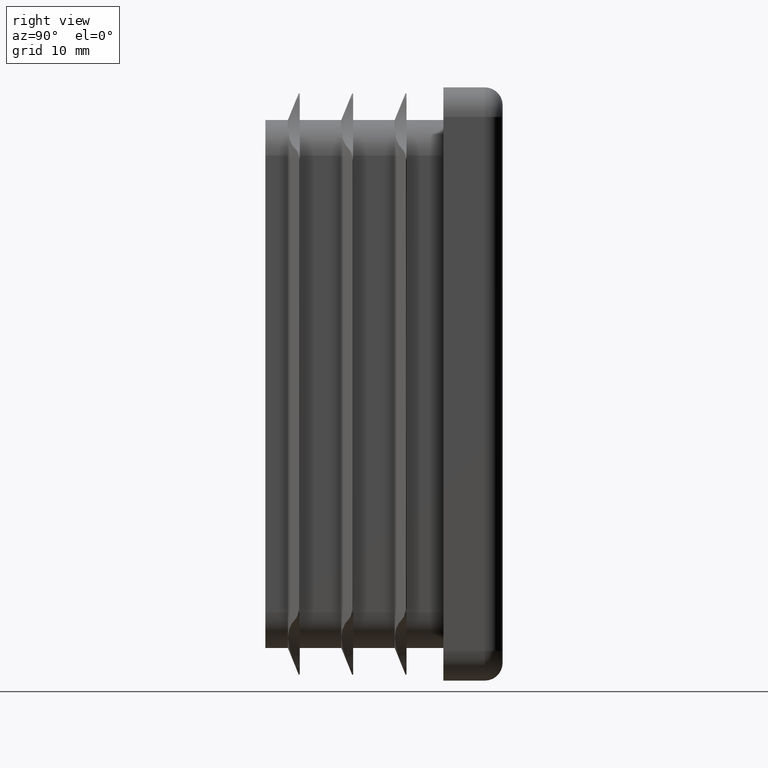
[diagram: clean part render]
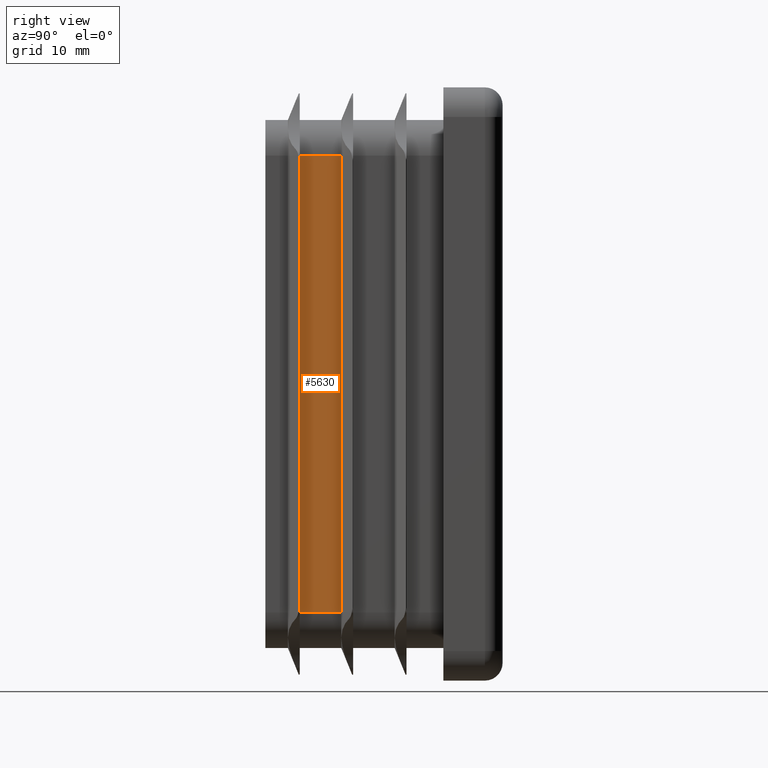
[diagram: same view with one face highlighted and labeled with its STEP entity id]
A machine part, right view. The second image highlights one B-rep face of the part: STEP entity #5630.
In plain terms, the highlighted planar face has unit normal (-1, 0, -0).
Its self-contained STEP definition (entity closure, byte-faithful):
#491 = DIRECTION ( 'NONE',  ( 4.505775262277420615E-16, 0.000000000000000000, -1.000000000000000000 ) ) ;
#661 = EDGE_CURVE ( 'NONE', #10861, #19691, #15038, .T. ) ;
#986 = PLANE ( 'NONE',  #10226 ) ;
#1874 = VECTOR ( 'NONE', #491, 1000.000000000000000 ) ;
#2814 = VECTOR ( 'NONE', #18132, 1000.000000000000000 ) ;
#3225 = FACE_OUTER_BOUND ( 'NONE', #8747, .T. ) ;
#3935 = ORIENTED_EDGE ( 'NONE', *, *, #8529, .F. ) ;
#4799 = CARTESIAN_POINT ( 'NONE',  ( 12.25000000000000355, -12.10000000000000142, 0.000000000000000000 ) ) ;
#4883 = DIRECTION ( 'NONE',  ( 4.505775262277420615E-16, 0.000000000000000000, -1.000000000000000000 ) ) ;
#5165 = CARTESIAN_POINT ( 'NONE',  ( 12.25000000000003375, -8.599999999999999645, 19.25000000000000355 ) ) ;
#5237 = EDGE_CURVE ( 'NONE', #10005, #8862, #18724, .T. ) ;
#5454 = ORIENTED_EDGE ( 'NONE', *, *, #19702, .T. ) ;
#5630 = ADVANCED_FACE ( 'NONE', ( #3225 ), #986, .F. ) ;
#6122 = DIRECTION ( 'NONE',  ( 4.505775262277420615E-16, 0.000000000000000000, -1.000000000000000000 ) ) ;
#6140 = CARTESIAN_POINT ( 'NONE',  ( 12.24999999999999467, -8.600000000000013856, 19.25000000000000355 ) ) ;
#6421 = DIRECTION ( 'NONE',  ( 4.505775262277420615E-16, 0.000000000000000000, -1.000000000000000000 ) ) ;
#6870 = CARTESIAN_POINT ( 'NONE',  ( 12.24999999999999467, -12.10000000000000142, 19.25000000000000355 ) ) ;
#7089 = ORIENTED_EDGE ( 'NONE', *, *, #661, .T. ) ;
#7278 = CARTESIAN_POINT ( 'NONE',  ( 12.25000000000001066, -8.600000000000015632, -19.24999999999999645 ) ) ;
#7464 = VECTOR ( 'NONE', #6122, 1000.000000000000000 ) ;
#7764 = CARTESIAN_POINT ( 'NONE',  ( 12.25000000000007994, -12.10000000000000142, 19.25000000000000355 ) ) ;
#8214 = CARTESIAN_POINT ( 'NONE',  ( 12.24999999999999467, -15.00000000000000000, 19.25000000000000355 ) ) ;
#8529 = EDGE_CURVE ( 'NONE', #9928, #10005, #15208, .T. ) ;
#8747 = EDGE_LOOP ( 'NONE', ( #7089, #5454, #10153, #3935, #10413, #9679 ) ) ;
#8757 = CARTESIAN_POINT ( 'NONE',  ( 12.25000000000001066, -15.00000000000000000, -19.24999999999999645 ) ) ;
#8862 = VERTEX_POINT ( 'NONE', #7278 ) ;
#9679 = ORIENTED_EDGE ( 'NONE', *, *, #10286, .T. ) ;
#9928 = VERTEX_POINT ( 'NONE', #6140 ) ;
#10005 = VERTEX_POINT ( 'NONE', #12815 ) ;
#10153 = ORIENTED_EDGE ( 'NONE', *, *, #5237, .F. ) ;
#10226 = AXIS2_PLACEMENT_3D ( 'NONE', #16857, #15525, #12118 ) ;
#10241 = CARTESIAN_POINT ( 'NONE',  ( 12.25000000000001066, -12.10000000000000142, -19.24999999999999645 ) ) ;
#10286 = EDGE_CURVE ( 'NONE', #10501, #10861, #19764, .T. ) ;
#10413 = ORIENTED_EDGE ( 'NONE', *, *, #18543, .F. ) ;
#10501 = VERTEX_POINT ( 'NONE', #6870 ) ;
#10861 = VERTEX_POINT ( 'NONE', #4799 ) ;
#12118 = DIRECTION ( 'NONE',  ( -3.604620209821936788E-16, 0.000000000000000000, 1.000000000000000000 ) ) ;
#12771 = VECTOR ( 'NONE', #17259, 1000.000000000000000 ) ;
#12815 = CARTESIAN_POINT ( 'NONE',  ( 12.25000000000000355, -8.600000000000013856, 0.000000000000000000 ) ) ;
#14144 = CARTESIAN_POINT ( 'NONE',  ( 12.25000000000008882, -12.10000000000000142, 0.000000000000000000 ) ) ;
#14647 = VECTOR ( 'NONE', #4883, 1000.000000000000000 ) ;
#15038 = LINE ( 'NONE', #14144, #18634 ) ;
#15208 = LINE ( 'NONE', #5165, #1874 ) ;
#15525 = DIRECTION ( 'NONE',  ( -1.000000000000000000, 0.000000000000000000, -3.604620209821936788E-16 ) ) ;
#15686 = LINE ( 'NONE', #8214, #12771 ) ;
#16636 = LINE ( 'NONE', #8757, #2814 ) ;
#16857 = CARTESIAN_POINT ( 'NONE',  ( 12.24999999999999645, -15.00000000000000000, 19.25000000000000355 ) ) ;
#17127 = CARTESIAN_POINT ( 'NONE',  ( 12.25000000000004263, -8.599999999999999645, 0.000000000000000000 ) ) ;
#17259 = DIRECTION ( 'NONE',  ( -0.000000000000000000, 1.000000000000000000, -0.000000000000000000 ) ) ;
#18132 = DIRECTION ( 'NONE',  ( -0.000000000000000000, 1.000000000000000000, -0.000000000000000000 ) ) ;
#18543 = EDGE_CURVE ( 'NONE', #10501, #9928, #15686, .T. ) ;
#18634 = VECTOR ( 'NONE', #6421, 1000.000000000000000 ) ;
#18724 = LINE ( 'NONE', #17127, #14647 ) ;
#19691 = VERTEX_POINT ( 'NONE', #10241 ) ;
#19702 = EDGE_CURVE ( 'NONE', #19691, #8862, #16636, .T. ) ;
#19764 = LINE ( 'NONE', #7764, #7464 ) ;